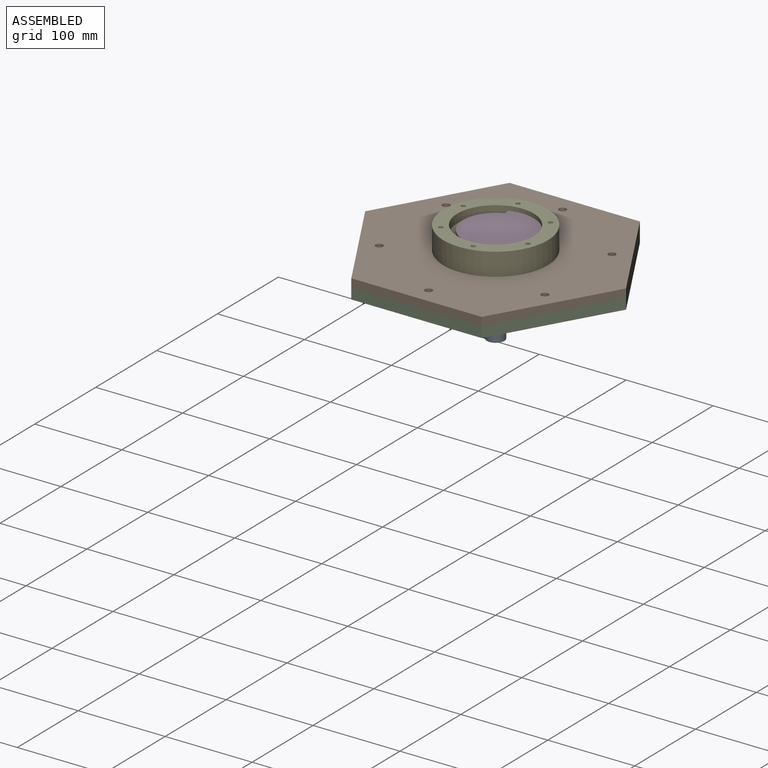
[diagram: assembled view]
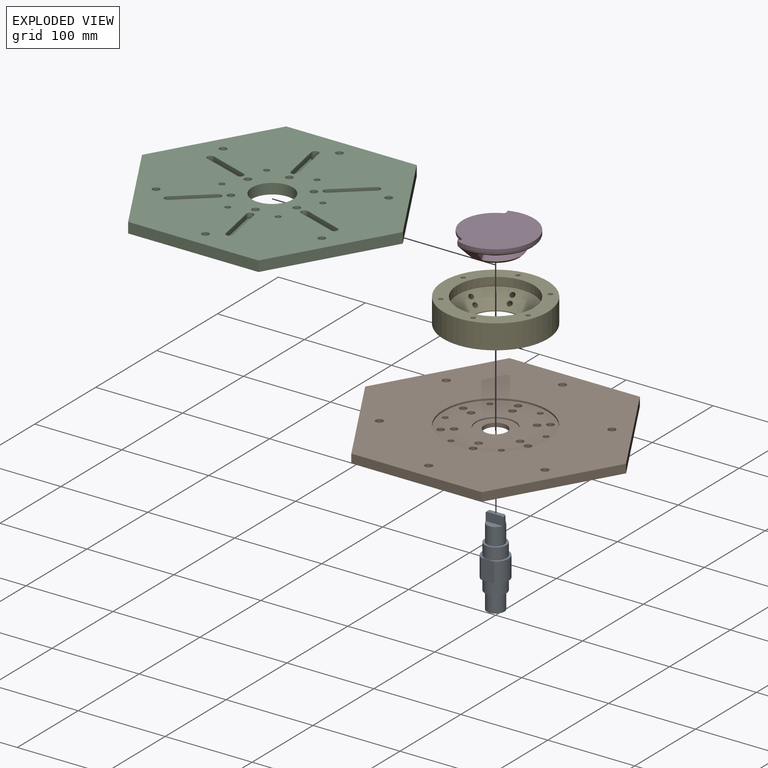
[diagram: exploded view]
GUIDED TOUR — MATED ASSEMBLY (Onshape document 57dc6ce8f182b310c673745f, AutoMate assembly 57dc6ce8f182b310c673745f_08e17f0f853a84fe9b5e1ca3_77a180705a8ab170c89639b7_default)

This assembly has 5 components, labeled P0..P4 below (a component is one placed occurrence of a part; the same part can appear more than once), held together by 3 mates. A mate is a constraint between two components; its type names the relative motion it leaves free:
  FASTENED — locks the two components together rigidly (no relative motion),
  REVOLUTE — leaves rotation about the listed axis free (a hinge).
Axis/direction vectors are unit vectors and 'through' points are millimeter coordinates, both in the assembly's world frame.

MATES
  1. REVOLUTE "Revolute 2": P4 <-> P3, axis (0.000, 0.000, 1.000) through (0.00, 0.00, 73.00) mm
  2. FASTENED "Fastened 1": P0 <-> P3, direction (0.000, 0.000, 1.000) through (0.00, 0.00, 45.00) mm
  3. FASTENED "Fastened 2": P4 <-> P1, direction (0.000, 0.000, -1.000) through (0.00, 0.00, 45.00) mm

ASSEMBLY ORDER
  1. P3 — the base component [order heuristic]
  2. P4 — core [order heuristic]
  3. P1 [order verified]
  4. P2 [order verified]
  5. P0 [order verified]
Order-tag legend:
  [order verified] — this step's position reverses a verified removal order: the component was checked to insert without passing through the ones already placed.
  [order heuristic] — the first 2 components form the assembly's core: parts whose collision-free extraction could not be verified, listed in mate-graph order.

Of the 5 components, 3 carry the full construction recipe — the FeatureScript program that regenerates the part's solid from scratch; the rest are supplied as boundary geometry only.
Each toured component is shown spotlighted twice — in the assembled view, then in the exploded view, where a leader line traces a displaced component back to its assembled socket (saturated green if recipe-attached, orange if geometry-only; every other component desaturated gray) — followed by its recipe or geometry summary and the mates that hold it.
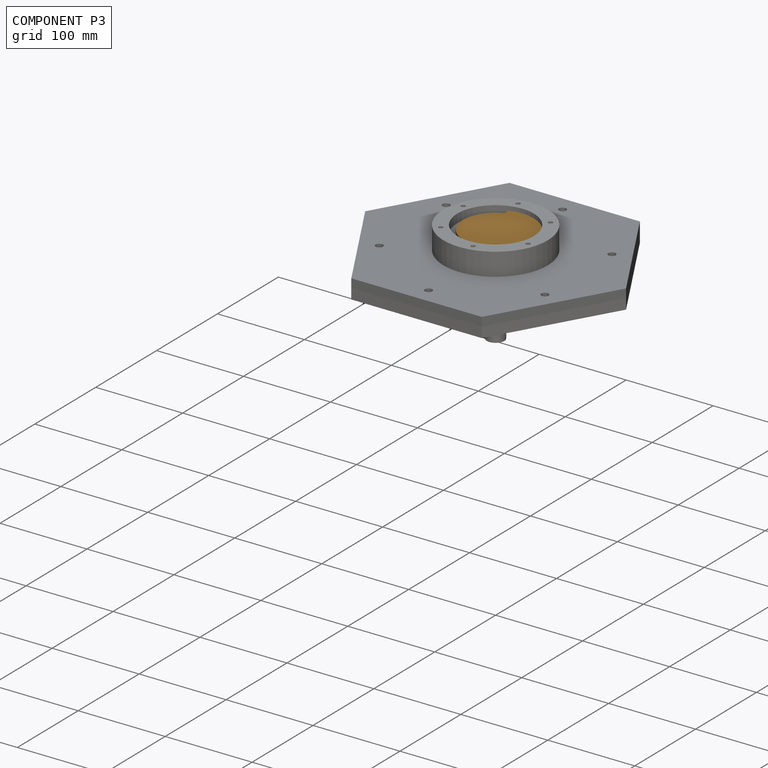
[diagram: component P3 — assembled]
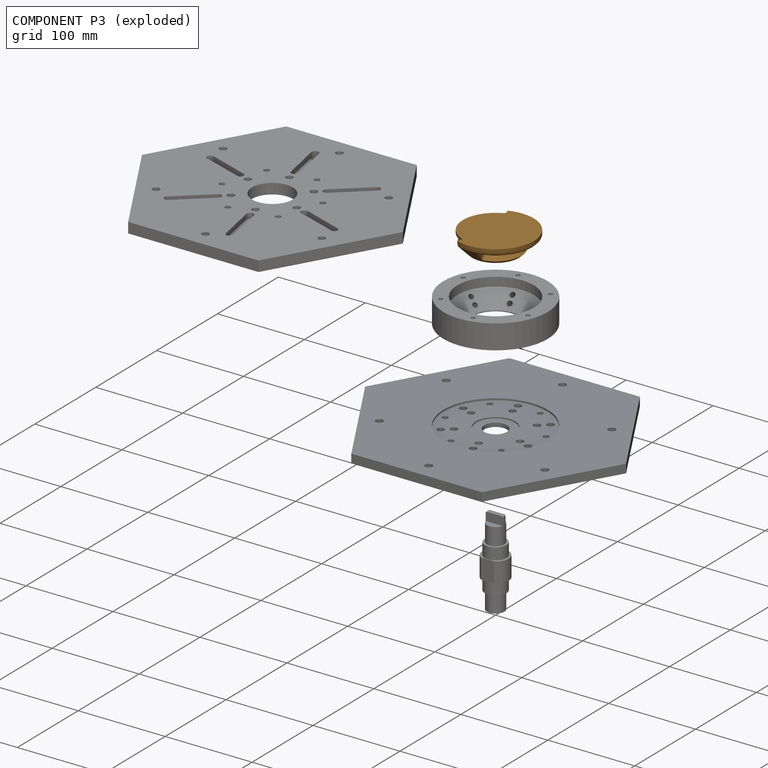
[diagram: component P3 — exploded]
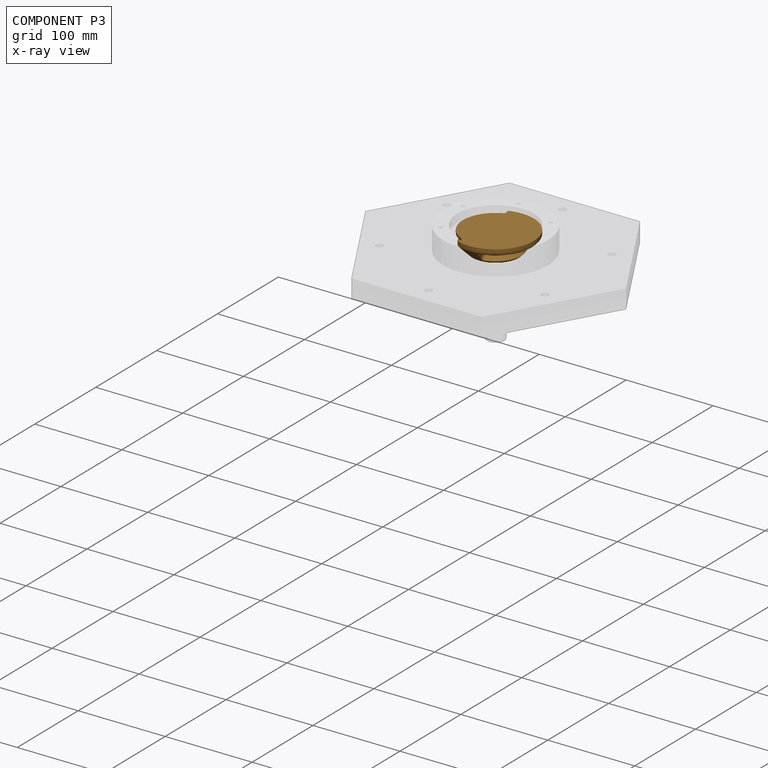
[diagram: component P3 — x-ray view]
COMPONENT P3 — geometry summary (no construction recipe available for this part):
  bounding box: 95.8 x 87.5 x 26.4 mm
  B-rep topology: 1 solid, 33 faces, 170 edges
  volume: 78229 mm^3 (35% of its bounding box)
  symmetry: mirror-symmetric across its y mid-plane
Held by: REVOLUTE mate "Revolute 2" to P4; FASTENED mate "Fastened 1" to P0.
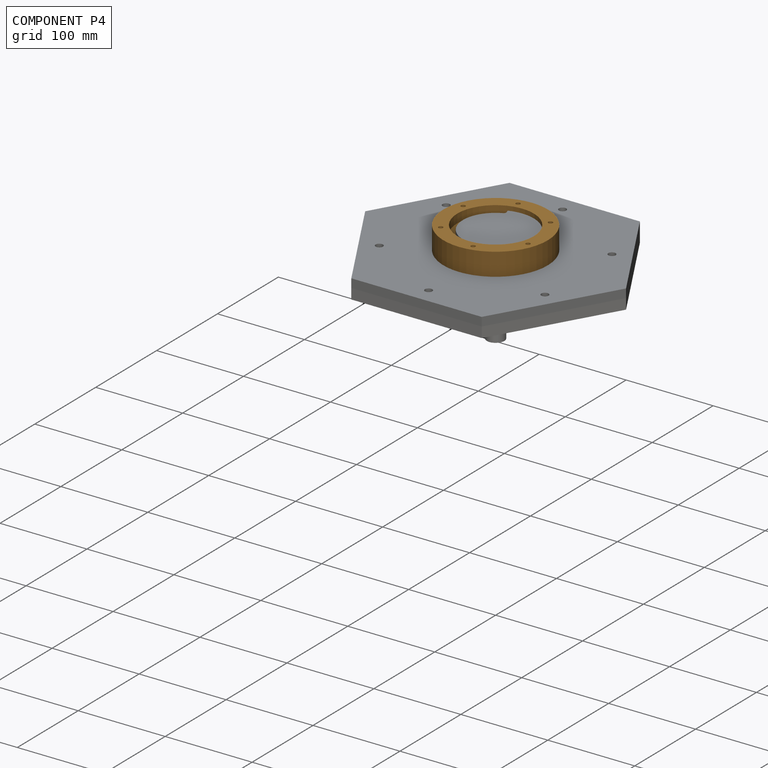
[diagram: component P4 — assembled]
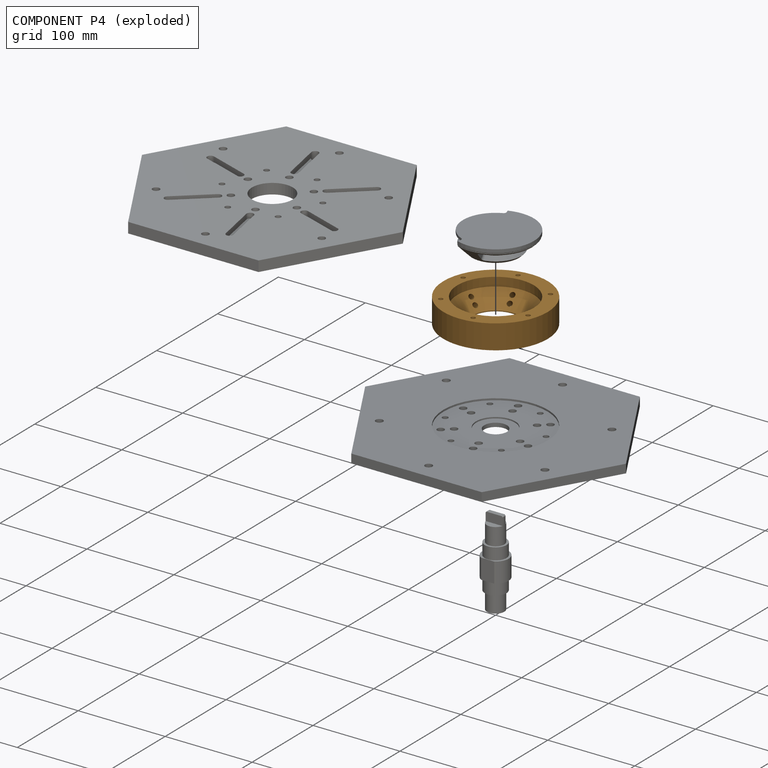
[diagram: component P4 — exploded]
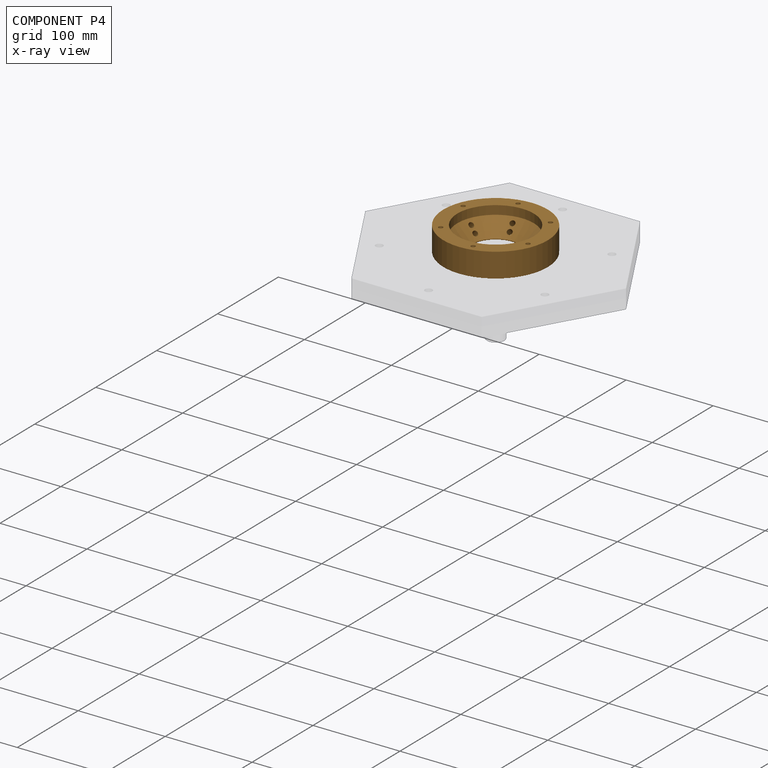
[diagram: component P4 — x-ray view]
COMPONENT P4 — geometry summary (no construction recipe available for this part):
  bounding box: 120.0 x 120.0 x 32.3 mm
  B-rep topology: 1 solid, 42 faces, 208 edges
  volume: 176706 mm^3 (38% of its bounding box)
  symmetry: 6-fold rotationally symmetric about the z axis
Held by: REVOLUTE mate "Revolute 2" to P3; FASTENED mate "Fastened 2" to P1.
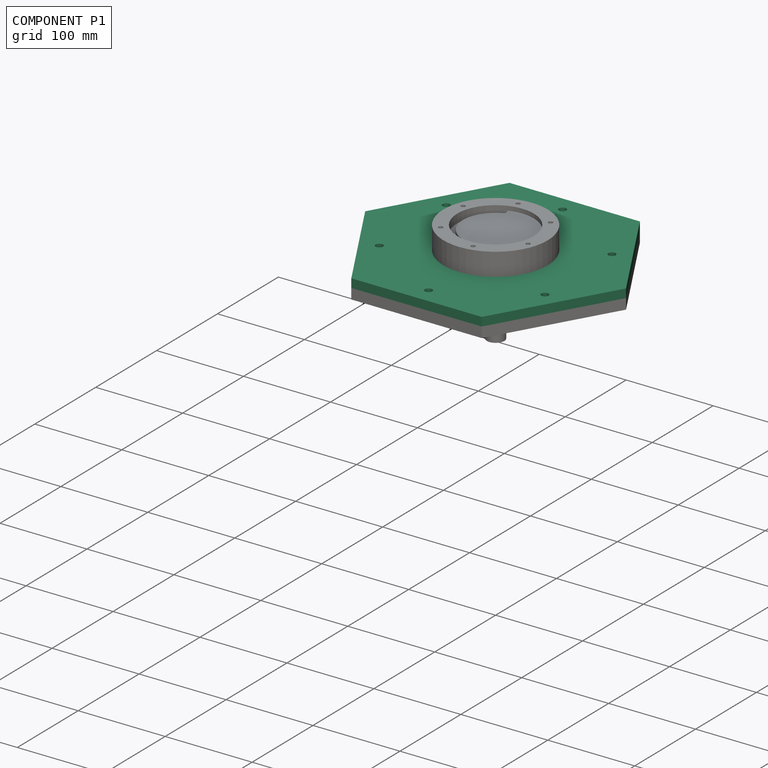
[diagram: component P1 — assembled]
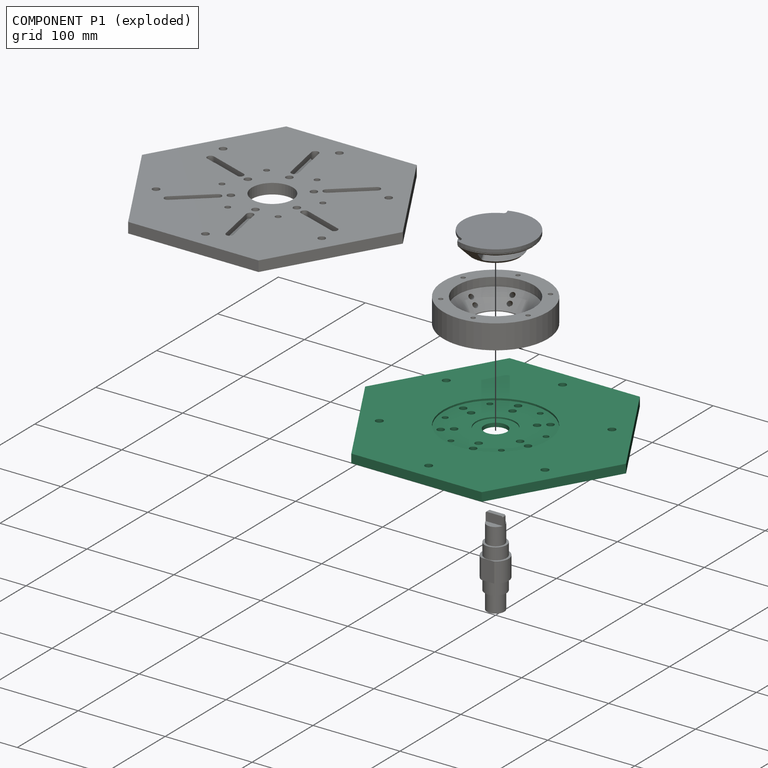
[diagram: component P1 — exploded]
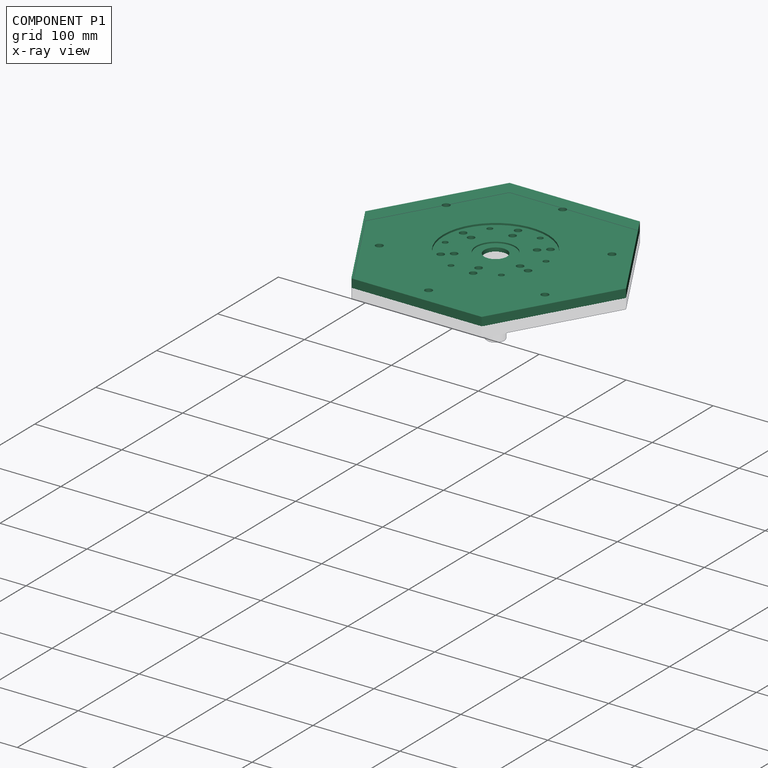
[diagram: component P1 — x-ray view]
COMPONENT P1 — recipe-attached (CADFS 00247790, mesh-verified: the recipe's output STEP matches this component's geometry to below the mesh-comparison resolution (tessellation chordal tolerance ~0.595 mm)).
Held by: FASTENED mate "Fastened 2" to P4.
Construction recipe (FeatureScript — the CAD program that rebuilds this solid; sketch coordinates are in the units given by the * unit suffixes, e.g. mm):

FeatureScript 1511;
import(path : "onshape/std/geometry.fs", version : "1511.0");
import(path : "onshape/std/common.fs", version : "1511.0");
const mm = millimeter;
const VERTEX = EntityType.VERTEX;
const EDGE = EntityType.EDGE;
const FACE = EntityType.FACE;
const BODY = EntityType.BODY;
function v(x, y){return vector(x, y);}
function OD(order){return orderDisambiguation(order);}
function OSD(set){return originalSetDisambiguation(set);}
function TD(topology){return topologyDisambiguation(topology);}
function TDD(query){return trueDependencyDisambiguation(query);}
function sQuery(a, b, c) {return sketchEntityQuery(a, b, c);}

annotation { "Feature Type Name" : "Feature", "Feature Type Description" : "" }
export const myFeature = defineFeature(function(context is Context, id is Id, definition is map)
    precondition{}
    {
        {
            var Q0;
            Q0=qCreatedBy(makeId("Top.planeOp"),FACE);
            var sketch = newSketch(context, id + "F0", { "sketchPlane" : qUnion([Q0])});
            skCircle(sketch, "E0.cCircle", {"center": v(0, 0) * mm, "radius": 150 * mm, "construction": true});
            skLineSegment(sketch, "E0.0", {"start": v(150, 0) * mm, "end": v(75, -129.9) * mm});
            skLineSegment(sketch, "E0.1", {"start": v(75, -129.9) * mm, "end": v(-75, -129.9) * mm});
            skLineSegment(sketch, "E0.2", {"start": v(-75, -129.9) * mm, "end": v(-150, 0) * mm});
            skLineSegment(sketch, "E0.3", {"start": v(-150, 0) * mm, "end": v(-75, 129.9) * mm});
            skLineSegment(sketch, "E0.4", {"start": v(-75, 129.9) * mm, "end": v(75, 129.9) * mm});
            skLineSegment(sketch, "E0.5", {"start": v(75, 129.9) * mm, "end": v(150, 0) * mm});
            skCircle(sketch, "E1", {"center": v(0, 0) * mm, "radius": 110 * mm, "construction": true});
            skCircle(sketch, "E2", {"center": v(0, 110) * mm, "radius": 4.2 * mm});
            skCircle(sketch, "E3.1.0", {"center": v(-95.26, 55) * mm, "radius": 4.2 * mm});
            skCircle(sketch, "E3.2.0", {"center": v(-95.26, -55) * mm, "radius": 4.2 * mm});
            skCircle(sketch, "E3.3.0", {"center": v(0, -110) * mm, "radius": 4.2 * mm});
            skCircle(sketch, "E3.4.0", {"center": v(95.26, -55) * mm, "radius": 4.2 * mm});
            skCircle(sketch, "E3.5.0", {"center": v(95.26, 55) * mm, "radius": 4.2 * mm});
            skSolve(sketch);
        }
        {
            var Q0;
            Q0=makeQuery(id+"F0.imprint","IMPRINT",FACE,{"disambiguationData":[TD([[makeQuery(id+"F0.imprint","IMPRINT",EDGE,{"derivedFrom":sQuery(id+"F0.wireOp",EDGE,"E0.0")}),-1.0]])]});
            extrude(context, id + "F1", {"entities" : qUnion([Q0]), "depth" : 10 * mm});
        }
        {
            var Q0;
            Q0=qCreatedBy(makeId("Front.planeOp"),FACE);
            var sketch = newSketch(context, id + "F2", { "sketchPlane" : qUnion([Q0])});
            skLineSegment(sketch, "E4", {"start": v(0, 18) * mm, "end": v(0, -22.98) * mm, "construction": true});
            skLineSegment(sketch, "E5", {"start": v(-23.5, 0) * mm, "end": v(8.7, 0) * mm, "construction": true});
            skLineSegment(sketch, "E6", {"start": v(-23.5, -10) * mm, "end": v(0, -10) * mm});
            skLineSegment(sketch, "E7", {"start": v(-60, 18) * mm, "end": v(0, 18) * mm});
            skLineSegment(sketch, "E8", {"start": v(-23.5, 2) * mm, "end": v(-23.5, -10) * mm});
            skLineSegment(sketch, "E9", {"start": v(-23.5, 2) * mm, "end": v(-13, 2) * mm});
            skPoint(sketch, "E10.orphan", {"position": v(-23.5, 0) * mm});
            skLineSegment(sketch, "E11", {"start": v(0, 18) * mm, "end": v(0, -10) * mm});
            skLineSegment(sketch, "E12", {"start": v(-60, 8) * mm, "end": v(-22.5, 8) * mm});
            skLineSegment(sketch, "E13", {"start": v(-60, 18) * mm, "end": v(-60, 8) * mm});
            skLineSegment(sketch, "E14.trimOffspring", {"start": v(-13, 6.5) * mm, "end": v(-13, 2) * mm});
            skLineSegment(sketch, "E15", {"start": v(-13, 6.5) * mm, "end": v(-22.5, 6.5) * mm});
            skLineSegment(sketch, "E16.trimOffspring", {"start": v(-22.5, 8) * mm, "end": v(-22.5, 6.5) * mm});
            skSolve(sketch);
        }
        {
            var Q0;
            Q0=qSketchRegion(id+"F2",true);
            var Q1;
            Q1=sQuery(id+"F2.wireOp",EDGE,"E4");
            revolve(context, id + "F3", {"operationType" : NewBodyOperationType.REMOVE, "entities" : qUnion([Q0]), "axis" : qUnion([Q1]), "revolveType" : RevolveType.FULL, "oppositeDirection" : true});
        }
        {
            var Q0;
            Q0=makeQuery(id+"F3.boolean.opBoolean","COPY",FACE,{"derivedFrom":makeQuery(id+"F3.opRevolve","SWEPT_FACE",FACE,{"disambiguationData":[OSD([sQuery(id+"F2.wireOp",EDGE,"E12")])]})});
            var sketch = newSketch(context, id + "F4", { "sketchPlane" : qUnion([Q0])});
            skLineSegment(sketch, "E17", {"start": v(0.45, -2.3) * mm, "end": v(-8.01, 41.22) * mm, "construction": true});
            skPoint(sketch, "E18", {"position": v(0, 0) * mm});
            skLineSegment(sketch, "E19", {"start": v(2.66, 0.52) * mm, "end": v(-11.37, -2.2) * mm, "construction": true});
            skLineSegment(sketch, "E20", {"start": v(0, 0) * mm, "end": v(46.78, 40.67) * mm, "construction": true});
            skCircle(sketch, "E21", {"center": v(0, 0) * mm, "radius": 21.5 * mm, "construction": true});
            skLineSegment(sketch, "E22.1.1", {"start": v(0, 0) * mm, "end": v(58.6, -20.18) * mm, "construction": true});
            skLineSegment(sketch, "E22.2.1", {"start": v(0, 0) * mm, "end": v(11.83, -60.85) * mm, "construction": true});
            skLineSegment(sketch, "E22.3.1", {"start": v(0, 0) * mm, "end": v(-46.78, -40.67) * mm, "construction": true});
            skLineSegment(sketch, "E22.4.1", {"start": v(0, 0) * mm, "end": v(-58.6, 20.18) * mm, "construction": true});
            skLineSegment(sketch, "E22.5.1", {"start": v(0, 0) * mm, "end": v(-11.83, 60.85) * mm, "construction": true});
            skLineSegment(sketch, "E22.anchor2", {"start": v(0, 0) * mm, "end": v(-11.83, 60.85) * mm, "construction": true});
            skPoint(sketch, "E23", {"position": v(-16.23, -14.1) * mm});
            skCircle(sketch, "E24", {"center": v(0, 0) * mm, "radius": 39.3 * mm, "construction": true});
            skCircle(sketch, "E25", {"center": v(0, 0) * mm, "radius": 52 * mm, "construction": true});
            skPoint(sketch, "E26", {"position": v(-9.92, 51.04) * mm});
            skPoint(sketch, "E27", {"position": v(39.24, 34.12) * mm});
            skPoint(sketch, "E28", {"position": v(49.17, -16.93) * mm});
            skPoint(sketch, "E29", {"position": v(9.92, -51.04) * mm});
            skPoint(sketch, "E30", {"position": v(-39.24, -34.12) * mm});
            skPoint(sketch, "E31", {"position": v(-49.17, 16.93) * mm});
            skPoint(sketch, "E32", {"position": v(-7.5, 38.58) * mm});
            skPoint(sketch, "E33", {"position": v(29.66, 25.78) * mm});
            skPoint(sketch, "E34", {"position": v(37.16, -12.8) * mm});
            skPoint(sketch, "E35", {"position": v(7.5, -38.58) * mm});
            skPoint(sketch, "E36", {"position": v(-29.66, -25.78) * mm});
            skPoint(sketch, "E37", {"position": v(-37.16, 12.8) * mm});
            skLineSegment(sketch, "E38", {"start": v(0, 0) * mm, "end": v(26.77, 77.76) * mm, "construction": true});
            skPoint(sketch, "E39", {"position": v(16.93, 49.17) * mm});
            skPoint(sketch, "E40.1.0", {"position": v(-34.12, 39.24) * mm});
            skPoint(sketch, "E40.2.0", {"position": v(-51.04, -9.92) * mm});
            skPoint(sketch, "E40.3.0", {"position": v(-16.93, -49.17) * mm});
            skPoint(sketch, "E40.4.0", {"position": v(34.12, -39.24) * mm});
            skPoint(sketch, "E40.5.0", {"position": v(51.04, 9.92) * mm});
            skSolve(sketch);
        }
        {
            var Q0;
            Q0=sQuery(id+"F4.wireOp",VERTEX,"E26");
            var Q1;
            Q1=sQuery(id+"F4.wireOp",VERTEX,"E27");
            var Q2;
            Q2=sQuery(id+"F4.wireOp",VERTEX,"E28");
            var Q3;
            Q3=sQuery(id+"F4.wireOp",VERTEX,"E29");
            var Q4;
            Q4=sQuery(id+"F4.wireOp",VERTEX,"E30");
            var Q5;
            Q5=sQuery(id+"F4.wireOp",VERTEX,"E31");
            var Q6;
            Q6=makeQuery(id+"F1.opExtrude","SWEPT_BODY",BODY,{"disambiguationData":[OSD([sQuery(id+"F0.wireOp",EDGE,"E0.0"),sQuery(id+"F0.wireOp",EDGE,"E0.1"),sQuery(id+"F0.wireOp",EDGE,"E0.2"),sQuery(id+"F0.wireOp",EDGE,"E0.3"),sQuery(id+"F0.wireOp",EDGE,"E0.4"),sQuery(id+"F0.wireOp",EDGE,"E0.5")])]});
            hole(context, id + "F5", {"style" : HoleStyle.SIMPLE, "endStyle" : HoleEndStyle.BLIND, "holeDiameter" : 8 * mm, "holeDepth" : 15 * mm, "locations" : qUnion([Q0, Q1, Q2, Q3, Q4, Q5]), "scope" : qUnion([Q6])});
        }
        {
            var Q0;
            Q0=sQuery(id+"F4.wireOp",VERTEX,"E32");
            var Q1;
            Q1=sQuery(id+"F4.wireOp",VERTEX,"E33");
            var Q2;
            Q2=sQuery(id+"F4.wireOp",VERTEX,"E34");
            var Q3;
            Q3=sQuery(id+"F4.wireOp",VERTEX,"E35");
            var Q4;
            Q4=sQuery(id+"F4.wireOp",VERTEX,"E36");
            var Q5;
            Q5=sQuery(id+"F4.wireOp",VERTEX,"E37");
            var Q6;
            Q6=makeQuery(id+"F1.opExtrude","SWEPT_BODY",BODY,{"disambiguationData":[OSD([sQuery(id+"F0.wireOp",EDGE,"E0.0"),sQuery(id+"F0.wireOp",EDGE,"E0.1"),sQuery(id+"F0.wireOp",EDGE,"E0.2"),sQuery(id+"F0.wireOp",EDGE,"E0.3"),sQuery(id+"F0.wireOp",EDGE,"E0.4"),sQuery(id+"F0.wireOp",EDGE,"E0.5")])]});
            hole(context, id + "F6", {"style" : HoleStyle.SIMPLE, "endStyle" : HoleEndStyle.BLIND, "holeDiameter" : 8 * mm, "holeDepth" : 15 * mm, "locations" : qUnion([Q0, Q1, Q2, Q3, Q4, Q5]), "scope" : qUnion([Q6])});
        }
        {
            var Q0;
            Q0=sQuery(id+"F4.wireOp",VERTEX,"E40.1.0");
            var Q1;
            Q1=sQuery(id+"F4.wireOp",VERTEX,"E39");
            var Q2;
            Q2=sQuery(id+"F4.wireOp",VERTEX,"E40.5.0");
            var Q3;
            Q3=sQuery(id+"F4.wireOp",VERTEX,"E40.4.0");
            var Q4;
            Q4=sQuery(id+"F4.wireOp",VERTEX,"E40.3.0");
            var Q5;
            Q5=sQuery(id+"F4.wireOp",VERTEX,"E40.2.0");
            var Q6;
            Q6=makeQuery(id+"F1.opExtrude","SWEPT_BODY",BODY,{"disambiguationData":[OSD([sQuery(id+"F0.wireOp",EDGE,"E0.0"),sQuery(id+"F0.wireOp",EDGE,"E0.1"),sQuery(id+"F0.wireOp",EDGE,"E0.2"),sQuery(id+"F0.wireOp",EDGE,"E0.3"),sQuery(id+"F0.wireOp",EDGE,"E0.4"),sQuery(id+"F0.wireOp",EDGE,"E0.5"),sQuery(id+"F0.wireOp",EDGE,"E2"),sQuery(id+"F0.wireOp",EDGE,"E3.1.0"),sQuery(id+"F0.wireOp",EDGE,"E3.2.0"),sQuery(id+"F0.wireOp",EDGE,"E3.3.0"),sQuery(id+"F0.wireOp",EDGE,"E3.4.0"),sQuery(id+"F0.wireOp",EDGE,"E3.5.0")])]});
            hole(context, id + "F7", {"style" : HoleStyle.SIMPLE, "endStyle" : HoleEndStyle.BLIND, "holeDiameter" : 6.4 * mm, "holeDepth" : 20 * mm, "locations" : qUnion([Q0, Q1, Q2, Q3, Q4, Q5]), "scope" : qUnion([Q6])});
        }
    });
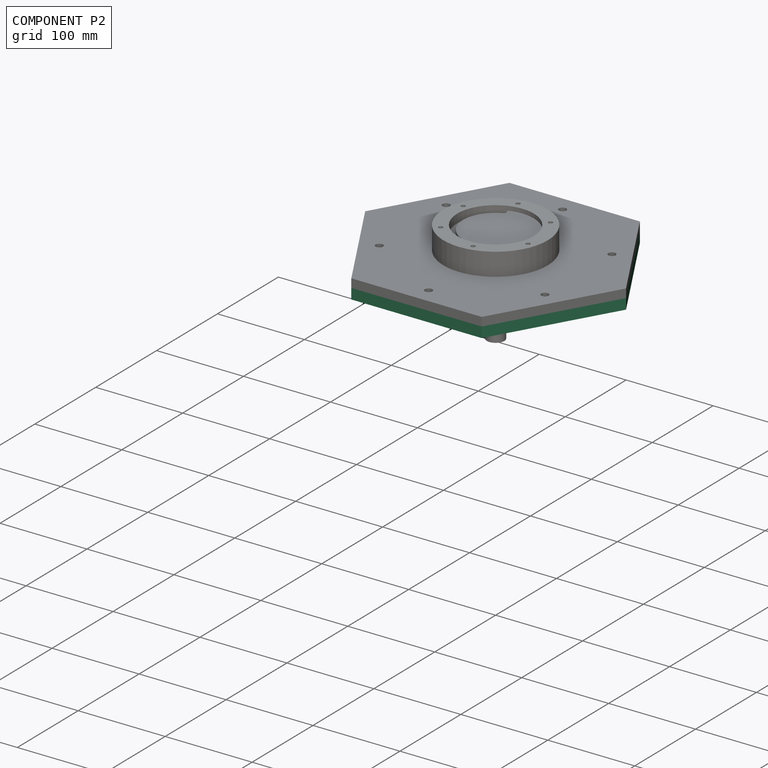
[diagram: component P2 — assembled]
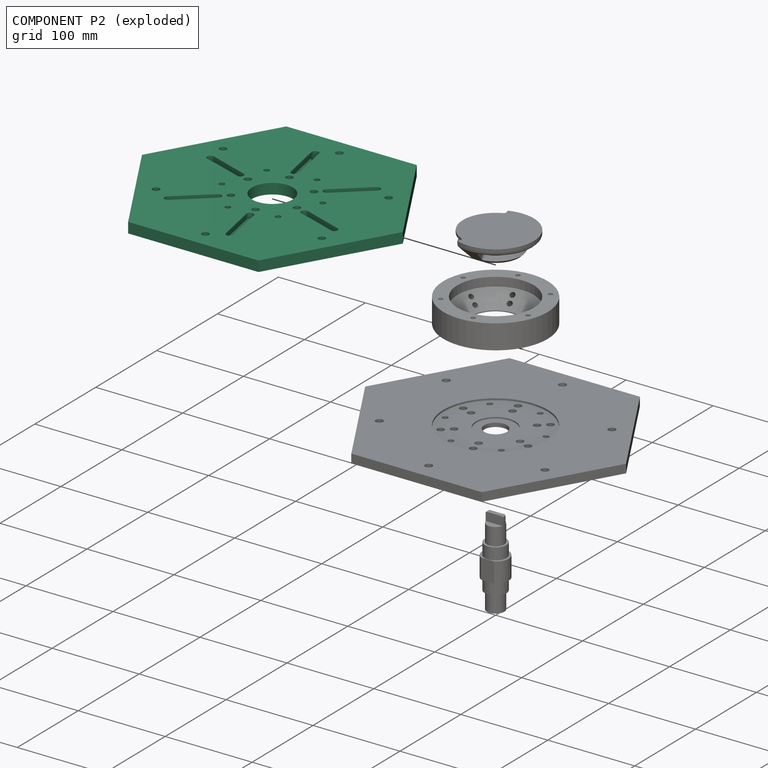
[diagram: component P2 — exploded]
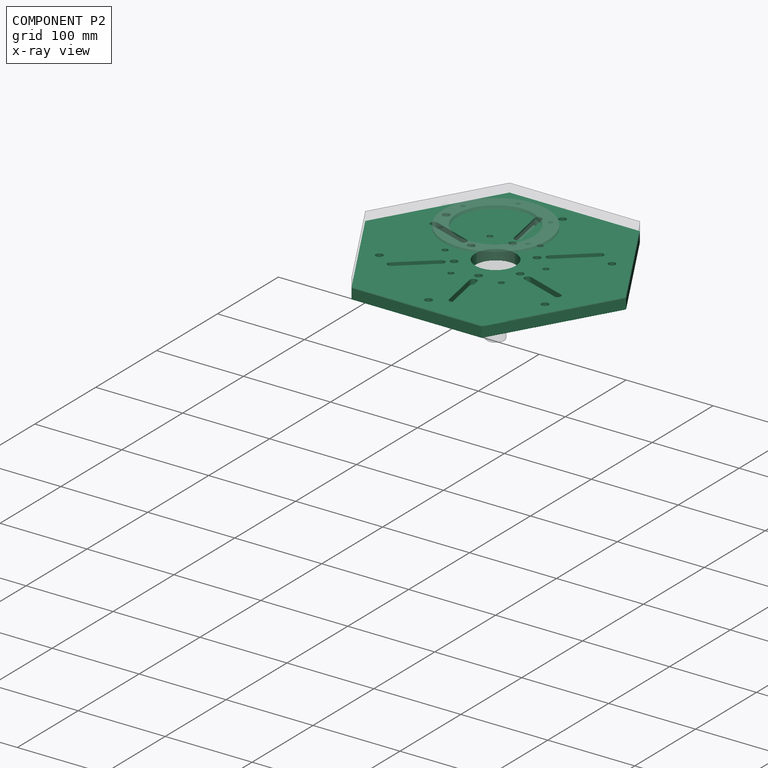
[diagram: component P2 — x-ray view]
COMPONENT P2 — recipe-attached (CADFS 00247778, mesh-verified: the recipe's output STEP matches this component's geometry to below the mesh-comparison resolution (tessellation chordal tolerance ~0.596 mm)).
Held by: no mates (free).
Construction recipe (FeatureScript — the CAD program that rebuilds this solid; sketch coordinates are in the units given by the * unit suffixes, e.g. mm):

FeatureScript 1511;
import(path : "onshape/std/geometry.fs", version : "1511.0");
import(path : "onshape/std/common.fs", version : "1511.0");
const mm = millimeter;
const VERTEX = EntityType.VERTEX;
const EDGE = EntityType.EDGE;
const FACE = EntityType.FACE;
const BODY = EntityType.BODY;
function v(x, y){return vector(x, y);}
function OD(order){return orderDisambiguation(order);}
function OSD(set){return originalSetDisambiguation(set);}
function TD(topology){return topologyDisambiguation(topology);}
function TDD(query){return trueDependencyDisambiguation(query);}
function sQuery(a, b, c) {return sketchEntityQuery(a, b, c);}

annotation { "Feature Type Name" : "Feature", "Feature Type Description" : "" }
export const myFeature = defineFeature(function(context is Context, id is Id, definition is map)
    precondition{}
    {
        {
            var Q0;
            Q0=qCreatedBy(makeId("Top.planeOp"),FACE);
            var sketch = newSketch(context, id + "F0", { "sketchPlane" : qUnion([Q0])});
            skCircle(sketch, "E0.cCircle", {"center": v(0, 0) * mm, "radius": 150 * mm, "construction": true});
            skLineSegment(sketch, "E0.0", {"start": v(-150, 0) * mm, "end": v(-75, 129.9) * mm});
            skLineSegment(sketch, "E0.1", {"start": v(-75, 129.9) * mm, "end": v(75, 129.9) * mm});
            skLineSegment(sketch, "E0.2", {"start": v(75, 129.9) * mm, "end": v(150, 0) * mm});
            skLineSegment(sketch, "E0.3", {"start": v(150, 0) * mm, "end": v(75, -129.9) * mm});
            skLineSegment(sketch, "E0.4", {"start": v(75, -129.9) * mm, "end": v(-75, -129.9) * mm});
            skLineSegment(sketch, "E0.5", {"start": v(-75, -129.9) * mm, "end": v(-150, 0) * mm});
            skLineSegment(sketch, "E1", {"start": v(-125.66, 72.55) * mm, "end": v(0, 0) * mm, "construction": true});
            skLineSegment(sketch, "E2", {"start": v(-114.43, 89.16) * mm, "end": v(24.62, 8.88) * mm, "construction": true});
            skCircle(sketch, "E3", {"center": v(0, 0) * mm, "radius": 110 * mm, "construction": true});
            skLineSegment(sketch, "E4", {"start": v(-120.9, 10.58) * mm, "end": v(-58.23, 119.14) * mm, "construction": true});
            skCircle(sketch, "E5", {"center": v(0, 0) * mm, "radius": 95 * mm, "construction": true});
            skCircle(sketch, "E6", {"center": v(0, 0) * mm, "radius": 99 * mm, "construction": true});
            skLineSegment(sketch, "E7", {"start": v(-18.9, 97.18) * mm, "end": v(0, 0) * mm, "construction": true});
            skCircle(sketch, "E8", {"center": v(-18.9, 97.18) * mm, "radius": 4 * mm});
            skCircle(sketch, "E9", {"center": v(0, 0) * mm, "radius": 12 * mm});
            skCircle(sketch, "E10.1.0", {"center": v(-93.6, 32.23) * mm, "radius": 4 * mm});
            skCircle(sketch, "E10.2.0", {"center": v(-74.72, -64.95) * mm, "radius": 4 * mm});
            skCircle(sketch, "E10.3.0", {"center": v(18.9, -97.18) * mm, "radius": 4 * mm});
            skCircle(sketch, "E10.4.0", {"center": v(93.6, -32.23) * mm, "radius": 4 * mm});
            skCircle(sketch, "E10.5.0", {"center": v(74.72, 64.95) * mm, "radius": 4 * mm});
            skCircle(sketch, "E11", {"center": v(-85.26, 72.32) * mm, "radius": 65 * mm, "construction": true});
            skCircle(sketch, "E12", {"center": v(0, 0) * mm, "radius": 39.3 * mm, "construction": true});
            skCircle(sketch, "E13", {"center": v(-7.5, 38.58) * mm, "radius": 4 * mm});
            skCircle(sketch, "E14.1.0", {"center": v(-37.16, 12.8) * mm, "radius": 4 * mm});
            skCircle(sketch, "E14.2.0", {"center": v(-29.66, -25.78) * mm, "radius": 4 * mm});
            skCircle(sketch, "E14.3.0", {"center": v(7.5, -38.58) * mm, "radius": 4 * mm});
            skCircle(sketch, "E14.4.0", {"center": v(37.16, -12.8) * mm, "radius": 4 * mm});
            skCircle(sketch, "E14.5.0", {"center": v(29.66, 25.78) * mm, "radius": 4 * mm});
            skCircle(sketch, "E15", {"center": v(0, 110) * mm, "radius": 4.05 * mm});
            skCircle(sketch, "E16.1.0", {"center": v(-95.26, 55) * mm, "radius": 4.05 * mm});
            skCircle(sketch, "E16.2.0", {"center": v(-95.26, -55) * mm, "radius": 4.05 * mm});
            skCircle(sketch, "E16.3.0", {"center": v(0, -110) * mm, "radius": 4.05 * mm});
            skCircle(sketch, "E16.4.0", {"center": v(95.26, -55) * mm, "radius": 4.05 * mm});
            skCircle(sketch, "E16.5.0", {"center": v(95.26, 55) * mm, "radius": 4.05 * mm});
            skSolve(sketch);
        }
        {
            var Q0;
            Q0=makeQuery(id+"F0.imprint","IMPRINT",FACE,{"disambiguationData":[TD([[makeQuery(id+"F0.imprint","IMPRINT",EDGE,{"derivedFrom":sQuery(id+"F0.wireOp",EDGE,"E0.0")}),-1.0]])]});
            extrude(context, id + "F1", {"entities" : qUnion([Q0]), "depth" : 12 * mm});
        }
        {
            var Q0;
            Q0=makeQuery(id+"F0.imprint","IMPRINT",FACE,{"disambiguationData":[TD([[makeQuery(id+"F0.imprint","IMPRINT",EDGE,{"derivedFrom":sQuery(id+"F0.wireOp",EDGE,"E0.0")}),-1.0]])]});
            var sketch = newSketch(context, id + "F2", { "sketchPlane" : qUnion([Q0])});
            skCircle(sketch, "E17", {"center": v(0, 0) * mm, "radius": 23.5 * mm});
            skSolve(sketch);
        }
        {
            var Q0;
            Q0=qSketchRegion(id+"F2",true);
            extrude(context, id + "F3", {"entities" : qUnion([Q0]), "operationType" : NewBodyOperationType.REMOVE, "depth" : 12 * mm});
        }
        {
            var Q0;
            Q0=makeQuery(id+"F1.opExtrude","CAP_FACE",FACE,{"disambiguationData":[OSD([sQuery(id+"F0.wireOp",EDGE,"E0.0"),sQuery(id+"F0.wireOp",EDGE,"E0.1"),sQuery(id+"F0.wireOp",EDGE,"E0.2"),sQuery(id+"F0.wireOp",EDGE,"E0.3"),sQuery(id+"F0.wireOp",EDGE,"E0.4"),sQuery(id+"F0.wireOp",EDGE,"E0.5"),sQuery(id+"F0.wireOp",EDGE,"E8"),sQuery(id+"F0.wireOp",EDGE,"E9"),sQuery(id+"F0.wireOp",EDGE,"E10.1.0"),sQuery(id+"F0.wireOp",EDGE,"E10.2.0"),sQuery(id+"F0.wireOp",EDGE,"E10.3.0"),sQuery(id+"F0.wireOp",EDGE,"E10.4.0"),sQuery(id+"F0.wireOp",EDGE,"E10.5.0")])],"isStart":false});
            var sketch = newSketch(context, id + "F4", { "sketchPlane" : qUnion([Q0])});
            skLineSegment(sketch, "E18.0", {"start": v(-150, 0) * mm, "end": v(-75, 129.9) * mm});
            skLineSegment(sketch, "E19.0", {"start": v(-22.36, 115.01) * mm, "end": v(0, 0) * mm, "construction": true});
            skArc(sketch, "E20", {"start": v(-14.96, 97.94) * mm, "mid": v(-19.65, 101.1) * mm, "end": v(-22.82, 96.42) * mm});
            skLineSegment(sketch, "E21", {"start": v(-22.82, 96.42) * mm, "end": v(-13.75, 49.8) * mm});
            skLineSegment(sketch, "E22.MirrorCS", {"start": v(-14.96, 97.94) * mm, "end": v(-5.9, 51.32) * mm});
            skArc(sketch, "E23", {"start": v(-13.75, 49.8) * mm, "mid": v(-9.06, 46.63) * mm, "end": v(-5.9, 51.32) * mm});
            skPoint(sketch, "E24.center", {"position": v(0, 0) * mm});
            skCircle(sketch, "E25", {"center": v(0, 0) * mm, "radius": 51.5 * mm, "construction": true});
            skCircle(sketch, "E26", {"center": v(0, 0) * mm, "radius": 99 * mm, "construction": true});
            skSolve(sketch);
        }
        {
            var Q0;
            Q0=qSketchRegion(id+"F4",true);
            extrude(context, id + "F5", {"entities" : qUnion([Q0]), "oppositeDirection" : true, "depth" : 6 * mm, "hasSecondDirection" : true, "secondDirectionOppositeDirection" : false, "secondDirectionDepth" : 10 * mm});
        }
        {
            var Q0;
            Q0=makeQuery(id+"F5.opExtrude","SWEPT_BODY",BODY,{"disambiguationData":[OSD([sQuery(id+"F4.wireOp",EDGE,"E20"),sQuery(id+"F4.wireOp",EDGE,"E21"),sQuery(id+"F4.wireOp",EDGE,"E22.MirrorCS"),sQuery(id+"F4.wireOp",EDGE,"E23")])]});
            var Q1;
            Q1=makeQuery(id+"F3.boolean.opBoolean","COPY",FACE,{"derivedFrom":makeQuery(id+"F3.opExtrude","SWEPT_FACE",FACE,{"disambiguationData":[OSD([sQuery(id+"F2.wireOp",EDGE,"E17")])]})});
            circularPattern(context, id + "F6", {"operationType" : NewBodyOperationType.REMOVE, "entities" : qUnion([Q0]), "axis" : qUnion([Q1]), "angle" : 360 * degree, "instanceCount" : 6, "equalSpace" : true});
        }
        {
            var Q0;
            Q0=makeQuery(id+"F1.opExtrude","CAP_FACE",FACE,{"disambiguationData":[OSD([sQuery(id+"F0.wireOp",EDGE,"E0.0"),sQuery(id+"F0.wireOp",EDGE,"E0.1"),sQuery(id+"F0.wireOp",EDGE,"E0.2"),sQuery(id+"F0.wireOp",EDGE,"E0.3"),sQuery(id+"F0.wireOp",EDGE,"E0.4"),sQuery(id+"F0.wireOp",EDGE,"E0.5"),sQuery(id+"F0.wireOp",EDGE,"E8"),sQuery(id+"F0.wireOp",EDGE,"E9"),sQuery(id+"F0.wireOp",EDGE,"E10.1.0"),sQuery(id+"F0.wireOp",EDGE,"E10.2.0"),sQuery(id+"F0.wireOp",EDGE,"E10.3.0"),sQuery(id+"F0.wireOp",EDGE,"E10.4.0"),sQuery(id+"F0.wireOp",EDGE,"E10.5.0"),sQuery(id+"F0.wireOp",EDGE,"E13"),sQuery(id+"F0.wireOp",EDGE,"E14.1.0"),sQuery(id+"F0.wireOp",EDGE,"E14.2.0"),sQuery(id+"F0.wireOp",EDGE,"E14.3.0"),sQuery(id+"F0.wireOp",EDGE,"E14.4.0"),sQuery(id+"F0.wireOp",EDGE,"E14.5.0"),sQuery(id+"F0.wireOp",EDGE,"E15"),sQuery(id+"F0.wireOp",EDGE,"E16.1.0"),sQuery(id+"F0.wireOp",EDGE,"E16.2.0"),sQuery(id+"F0.wireOp",EDGE,"E16.3.0"),sQuery(id+"F0.wireOp",EDGE,"E16.4.0"),sQuery(id+"F0.wireOp",EDGE,"E16.5.0")])],"isStart":true});
            var sketch = newSketch(context, id + "F7", { "sketchPlane" : qUnion([Q0])});
            skLineSegment(sketch, "E27", {"start": v(0, 0) * mm, "end": v(-22.59, 65.6) * mm, "construction": true});
            skCircle(sketch, "E28", {"center": v(0, 0) * mm, "radius": 52 * mm, "construction": true});
            skPoint(sketch, "E29", {"position": v(-16.93, 49.17) * mm});
            skPoint(sketch, "E30.1.0", {"position": v(-51.04, 9.92) * mm});
            skPoint(sketch, "E30.2.0", {"position": v(-34.12, -39.24) * mm});
            skPoint(sketch, "E31.0.3.0", {"position": v(16.93, -49.17) * mm});
            skPoint(sketch, "E31.0.4.0", {"position": v(51.04, -9.92) * mm});
            skPoint(sketch, "E31.0.5.0", {"position": v(34.12, 39.24) * mm});
            skSolve(sketch);
        }
        {
            var Q0;
            Q0=sQuery(id+"F7.wireOp",VERTEX,"E29");
            var Q1;
            Q1=sQuery(id+"F7.wireOp",VERTEX,"E30.1.0");
            var Q2;
            Q2=sQuery(id+"F7.wireOp",VERTEX,"E30.2.0");
            var Q3;
            Q3=sQuery(id+"F7.wireOp",VERTEX,"E31.0.3.0");
            var Q4;
            Q4=sQuery(id+"F7.wireOp",VERTEX,"E31.0.4.0");
            var Q5;
            Q5=sQuery(id+"F7.wireOp",VERTEX,"E31.0.5.0");
            var Q6;
            Q6=makeQuery(id+"F1.opExtrude","SWEPT_BODY",BODY,{"disambiguationData":[OSD([sQuery(id+"F0.wireOp",EDGE,"E0.0"),sQuery(id+"F0.wireOp",EDGE,"E0.1"),sQuery(id+"F0.wireOp",EDGE,"E0.2"),sQuery(id+"F0.wireOp",EDGE,"E0.3"),sQuery(id+"F0.wireOp",EDGE,"E0.4"),sQuery(id+"F0.wireOp",EDGE,"E0.5"),sQuery(id+"F0.wireOp",EDGE,"E8"),sQuery(id+"F0.wireOp",EDGE,"E9"),sQuery(id+"F0.wireOp",EDGE,"E10.1.0"),sQuery(id+"F0.wireOp",EDGE,"E10.2.0"),sQuery(id+"F0.wireOp",EDGE,"E10.3.0"),sQuery(id+"F0.wireOp",EDGE,"E10.4.0"),sQuery(id+"F0.wireOp",EDGE,"E10.5.0"),sQuery(id+"F0.wireOp",EDGE,"E13"),sQuery(id+"F0.wireOp",EDGE,"E14.1.0"),sQuery(id+"F0.wireOp",EDGE,"E14.2.0"),sQuery(id+"F0.wireOp",EDGE,"E14.3.0"),sQuery(id+"F0.wireOp",EDGE,"E14.4.0"),sQuery(id+"F0.wireOp",EDGE,"E14.5.0"),sQuery(id+"F0.wireOp",EDGE,"E15"),sQuery(id+"F0.wireOp",EDGE,"E16.1.0"),sQuery(id+"F0.wireOp",EDGE,"E16.2.0"),sQuery(id+"F0.wireOp",EDGE,"E16.3.0"),sQuery(id+"F0.wireOp",EDGE,"E16.4.0"),sQuery(id+"F0.wireOp",EDGE,"E16.5.0")])]});
            hole(context, id + "F8", {"style" : HoleStyle.C_BORE, "endStyle" : HoleEndStyle.BLIND, "holeDiameter" : 6.4 * mm, "cBoreDiameter" : 14 * mm, "cBoreDepth" : 8 * mm, "holeDepth" : 20 * mm, "locations" : qUnion([Q0, Q1, Q2, Q3, Q4, Q5]), "scope" : qUnion([Q6])});
        }
    });
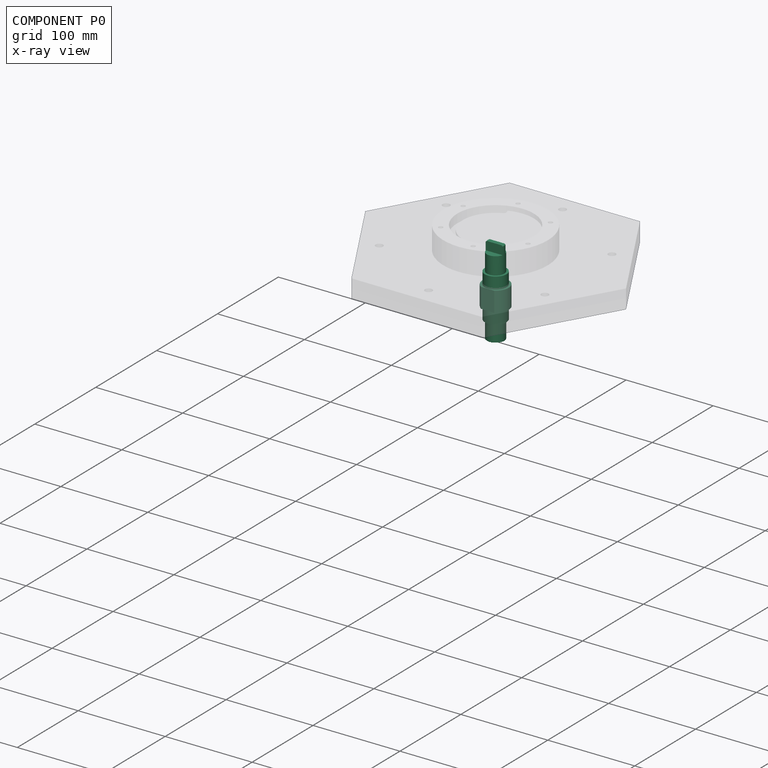
[diagram: component P0 — x-ray view]
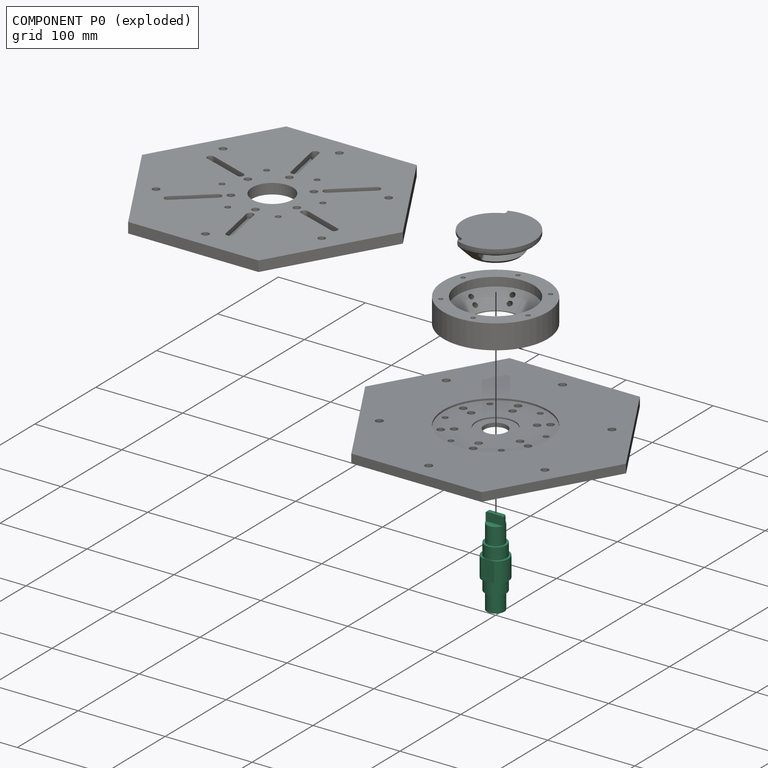
[diagram: component P0 — exploded]
COMPONENT P0 — recipe-attached (CADFS 00247781, mesh-verified: the recipe's output STEP matches this component's geometry to below the mesh-comparison resolution (tessellation chordal tolerance ~0.162 mm)).
Held by: FASTENED mate "Fastened 1" to P3.
Construction recipe (FeatureScript — the CAD program that rebuilds this solid; sketch coordinates are in the units given by the * unit suffixes, e.g. mm):

FeatureScript 1511;
import(path : "onshape/std/geometry.fs", version : "1511.0");
import(path : "onshape/std/common.fs", version : "1511.0");
const mm = millimeter;
const VERTEX = EntityType.VERTEX;
const EDGE = EntityType.EDGE;
const FACE = EntityType.FACE;
const BODY = EntityType.BODY;
function v(x, y){return vector(x, y);}
function OD(order){return orderDisambiguation(order);}
function OSD(set){return originalSetDisambiguation(set);}
function TD(topology){return topologyDisambiguation(topology);}
function TDD(query){return trueDependencyDisambiguation(query);}
function sQuery(a, b, c) {return sketchEntityQuery(a, b, c);}

annotation { "Feature Type Name" : "Feature", "Feature Type Description" : "" }
export const myFeature = defineFeature(function(context is Context, id is Id, definition is map)
    precondition{}
    {
        {
            var Q0;
            Q0=qCreatedBy(makeId("Front.planeOp"),FACE);
            var sketch = newSketch(context, id + "F0", { "sketchPlane" : qUnion([Q0])});
            skLineSegment(sketch, "E0", {"start": v(-15, 11.5) * mm, "end": v(-15, 0) * mm});
            skLineSegment(sketch, "E1", {"start": v(-10, 45) * mm, "end": v(0, 45) * mm});
            skLineSegment(sketch, "E2.MirrorCS", {"start": v(-15, 0) * mm, "end": v(-15, 11.5) * mm});
            skLineSegment(sketch, "E3", {"start": v(0, 45) * mm, "end": v(0, 0) * mm});
            skLineSegment(sketch, "E4", {"start": v(-15, 11.5) * mm, "end": v(-12.5, 11.5) * mm});
            skLineSegment(sketch, "E5", {"start": v(-12.5, 25) * mm, "end": v(-12.5, 11.5) * mm});
            skLineSegment(sketch, "E6", {"start": v(-12.5, 25) * mm, "end": v(-10, 25) * mm});
            skLineSegment(sketch, "E7", {"start": v(-10, 45) * mm, "end": v(-10, 25) * mm});
            skLineSegment(sketch, "E8", {"start": v(12.24, 0) * mm, "end": v(-26.8, 0) * mm, "construction": true});
            skLineSegment(sketch, "E9.MirrorCS", {"start": v(0, -45) * mm, "end": v(0, 0) * mm});
            skLineSegment(sketch, "E10.MirrorCS", {"start": v(-10, -45) * mm, "end": v(0, -45) * mm});
            skLineSegment(sketch, "E11.MirrorCS", {"start": v(-10, -45) * mm, "end": v(-10, -25) * mm});
            skLineSegment(sketch, "E12.MirrorCS", {"start": v(-12.5, -25) * mm, "end": v(-10, -25) * mm});
            skLineSegment(sketch, "E13.MirrorCS", {"start": v(-12.5, -25) * mm, "end": v(-12.5, -11.5) * mm});
            skLineSegment(sketch, "E14.MirrorCS", {"start": v(-15, -11.5) * mm, "end": v(-12.5, -11.5) * mm});
            skLineSegment(sketch, "E15.MirrorCS", {"start": v(-15, 0) * mm, "end": v(-15, -11.5) * mm});
            skSolve(sketch);
        }
        {
            var Q0;
            Q0=qSketchRegion(id+"F0",true);
            var Q1;
            Q1=sQuery(id+"F0.wireOp",EDGE,"E3");
            revolve(context, id + "F1", {"entities" : qUnion([Q0]), "axis" : qUnion([Q1]), "revolveType" : RevolveType.FULL});
        }
        {
            var Q0;
            Q0=qCreatedBy(makeId("Top.planeOp"),FACE);
            var sketch = newSketch(context, id + "F2", { "sketchPlane" : qUnion([Q0])});
            skLineSegment(sketch, "E16", {"start": v(-18, -12.5) * mm, "end": v(24.59, -12.5) * mm, "construction": true});
            skLineSegment(sketch, "E17", {"start": v(-15, -13) * mm, "end": v(0, -13) * mm});
            skLineSegment(sketch, "E18", {"start": v(-15, -17) * mm, "end": v(0, -17) * mm});
            skLineSegment(sketch, "E19.trimOffspring", {"start": v(-15, -13) * mm, "end": v(-15, -17) * mm});
            skLineSegment(sketch, "E20.MirrorCS", {"start": v(15, -13) * mm, "end": v(0, -13) * mm});
            skLineSegment(sketch, "E21.MirrorCS", {"start": v(15, -13) * mm, "end": v(15, -17) * mm});
            skLineSegment(sketch, "E22.MirrorCS", {"start": v(15, -17) * mm, "end": v(0, -17) * mm});
            skCircle(sketch, "E23.0", {"center": v(0, 0) * mm, "radius": 10 * mm, "construction": true});
            skCircle(sketch, "E24.0", {"center": v(0, 0) * mm, "radius": 12.5 * mm, "construction": true});
            skSolve(sketch);
        }
        {
            var Q0;
            Q0=qSketchRegion(id+"F2",true);
            extrude(context, id + "F3", {"entities" : qUnion([Q0]), "operationType" : NewBodyOperationType.REMOVE, "depth" : 25 * mm, "hasSecondDirection" : true, "secondDirectionOppositeDirection" : true, "secondDirectionDepth" : 25 * mm});
        }
        {
            var Q0;
            Q0=makeQuery(id+"F1.opRevolve","SWEPT_FACE",FACE,{"disambiguationData":[OSD([sQuery(id+"F0.wireOp",EDGE,"E1")])]});
            cPlane(context, id + "F4", {"entities" : qUnion([Q0]), "cplaneType" : CPlaneType.OFFSET, "offset" : 0 * mm, "width" : 150 * mm, "height" : 150 * mm});
        }
        {
            var Q0;
            Q0=qCreatedBy(id+"F4.planeOp",FACE);
            var sketch = newSketch(context, id + "F5", { "sketchPlane" : qUnion([Q0])});
            skArc(sketch, "E25.0.0", {"start": v(-9.68, 2.5) * mm, "mid": v(-10, 0) * mm, "end": v(-9.68, -2.5) * mm});
            skLineSegment(sketch, "E26", {"start": v(-9.68, 2.5) * mm, "end": v(9.68, 2.5) * mm});
            skLineSegment(sketch, "E27.MirrorCS", {"start": v(-9.68, -2.5) * mm, "end": v(9.68, -2.5) * mm});
            skArc(sketch, "E28.trimOffspring", {"start": v(9.68, -2.5) * mm, "mid": v(10, 0) * mm, "end": v(9.68, 2.5) * mm});
            skSolve(sketch);
        }
        {
            var Q0;
            Q0=qSketchRegion(id+"F5",true);
            extrude(context, id + "F6", {"entities" : qUnion([Q0]), "operationType" : NewBodyOperationType.ADD, "depth" : 10 * mm, "hasSecondDirection" : true, "secondDirectionOppositeDirection" : true, "secondDirectionDepth" : 10 * mm});
        }
        {
            var Q0;
            Q0=makeQuery(id+"F6.opExtrude","CAP_EDGE",EDGE,{"disambiguationData":[OSD([sQuery(id+"F5.wireOp",EDGE,"E28.trimOffspring")])],"isStart":false});
            var Q1;
            Q1=makeQuery(id+"F6.opExtrude","CAP_EDGE",EDGE,{"disambiguationData":[OSD([sQuery(id+"F5.wireOp",EDGE,"E25.0.0")])],"isStart":false});
            chamfer(context, id + "F7", {"entities" : qUnion([Q0, Q1]), "width" : 1 * mm, "tangentPropagation" : true});
        }
    });
PROVENANCE & LICENSES
Assembly (occurrences, transforms, mates, per-part STEP geometry): AutoMate dataset, Zenodo record 7776208, CC0.
Construction recipes: CADFS (HuggingFace VladPyatov/CADFS, CC-BY-4.0, layered over the ABC dataset), FeatureScript reconstruction programs keyed by ABC model id.
Join: ABC meta listings map ABC model id -> Onshape documentId; within a shared document, parts are matched by geometric signature (bounding-box dims + volume at 0.1% relative tolerance, exact B-rep face/solid counts).
Verification: 3 of this assembly's 5 components carry a recipe attachment, and every attachment is mesh-verified: the CADFS STEP and the AutoMate member STEP were compared as meshes in their shared local frame (symmetric sampled-point-to-mesh distance); worst across the 3 attachments: below the mesh-comparison resolution (tessellation chordal tolerance ~0.596 mm) on a 397 mm part.
Renders: orthographic iso camera (az 35 / el 25); the floor grid conveys scale (grid pitch printed in each image; no ruler). In the exploded view each component is displaced by its stored offset vector: the offsets alone carry the explosion direction (mate normal/axis signs are not orientation cues and do not encode it), and separation distances are assigned per mate-chain, not proportionally to assembly-order depth.
